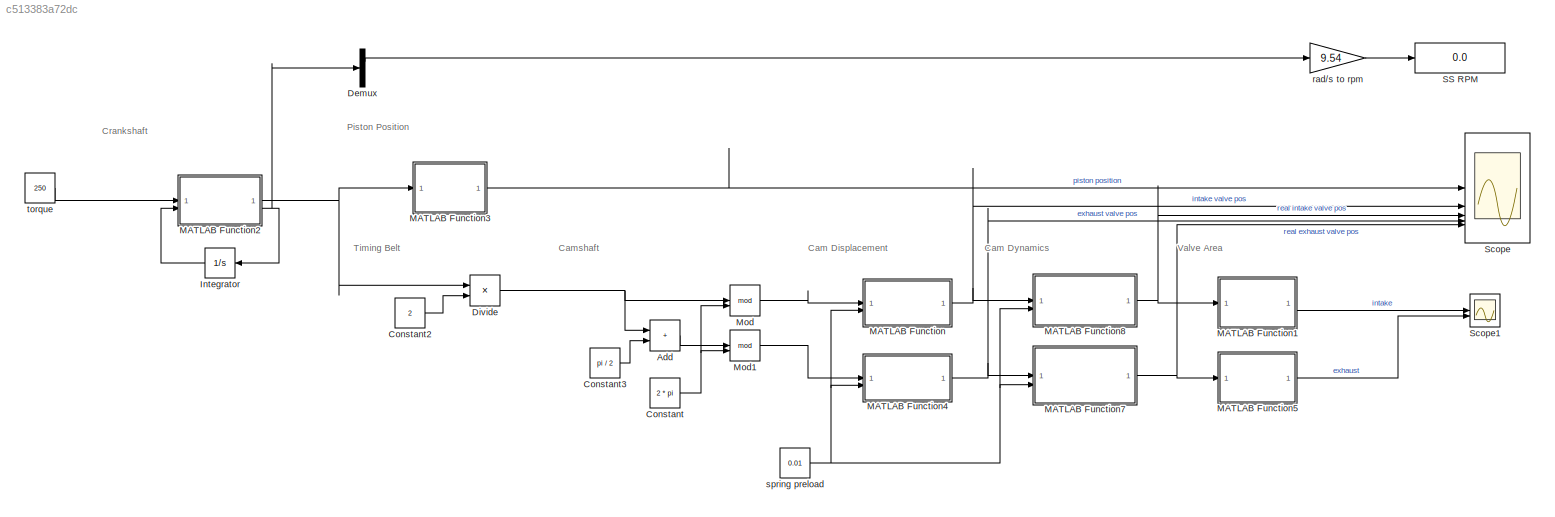
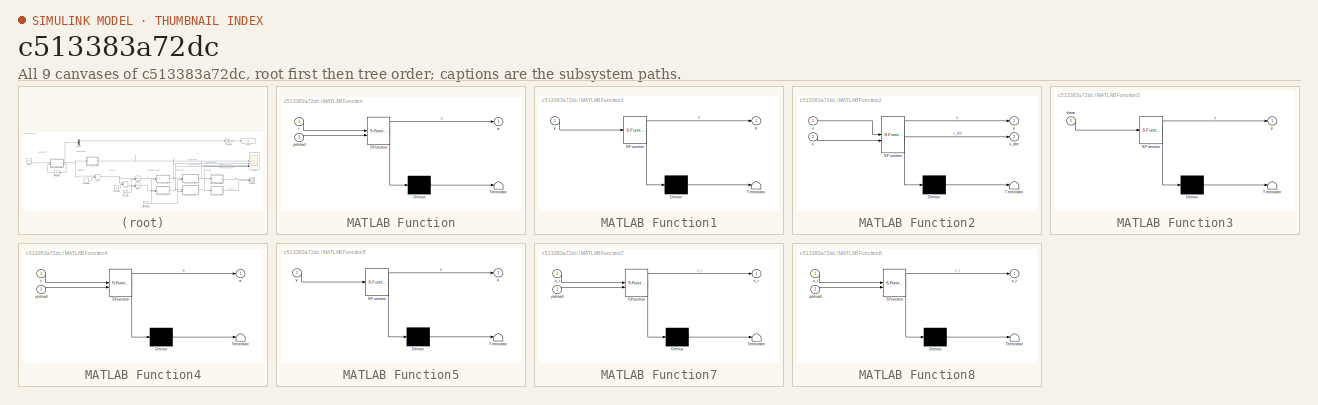
[diagram: thumbnail index - all 9 canvases of the model, root first then tree order]
MODEL slx_c513383a72dc
KIND model
CONFIG AbsTol = auto
CONFIG EnableMultiTasking = off
CONFIG FixedStep = 0.0001
CONFIG MaxStep = auto
CONFIG MinStep = auto
CONFIG RelTol = 1e-3
CONFIG SampleTimeConstraint = Unconstrained
CONFIG SolverName = FixedStepAuto
CONFIG StartTime = 0.0
CONFIG StopTime = 3
BLOCK [Sum] Add
  IconShape = rectangular
BLOCK [Constant] Constant
  Value = 2 * pi
BLOCK [Constant] Constant2
  Value = 2
BLOCK [Constant] Constant3
  Value = pi / 2
BLOCK [Demux] Demux
  Outputs = 2
BLOCK [Product] Divide
  Inputs = */
BLOCK [Integrator] Integrator
  InitialCondition = [0;0]
  NameLocation = top
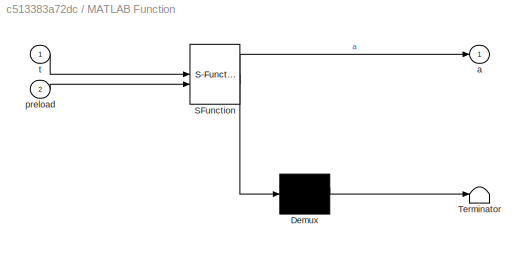
BLOCK [SubSystem] MATLAB Function
  ErrorFcn = Stateflow.Translate.translate
  LibrarySourceBlock = simulink/User-Defined\nFunctions/MATLAB Function
  PermitHierarchicalResolution = ExplicitOnly
  SFBlockType = MATLAB Function
  TreatAsAtomicUnit = on
BLOCK [Demux] MATLAB Function/ Demux 
  Outputs = 1
BLOCK [S-Function] MATLAB Function/ SFunction 
  EnableBusSupport = on
  FunctionName = sf_sfun
  PortCounts = [2 2]
  SFcnIsStateOwnerBlock = off
  SFunctionDeploymentMode = off
  Tag = Stateflow S-Function 2
BLOCK [Terminator] MATLAB Function/ Terminator 
BLOCK [Outport] MATLAB Function/a
BLOCK [Inport] MATLAB Function/preload
  Port = 2
BLOCK [Inport] MATLAB Function/t
BLOCK [SubSystem] MATLAB Function1
  ErrorFcn = Stateflow.Translate.translate
  LibrarySourceBlock = simulink/User-Defined\nFunctions/MATLAB Function
  PermitHierarchicalResolution = ExplicitOnly
  SFBlockType = MATLAB Function
  TreatAsAtomicUnit = on
BLOCK [Demux] MATLAB Function1/ Demux 
  Outputs = 1
BLOCK [S-Function] MATLAB Function1/ SFunction 
  EnableBusSupport = on
  FunctionName = sf_sfun
  PortCounts = [1 2]
  SFcnIsStateOwnerBlock = off
  SFunctionDeploymentMode = off
  Tag = Stateflow S-Function 1
BLOCK [Terminator] MATLAB Function1/ Terminator 
BLOCK [Outport] MATLAB Function1/a
BLOCK [Inport] MATLAB Function1/y
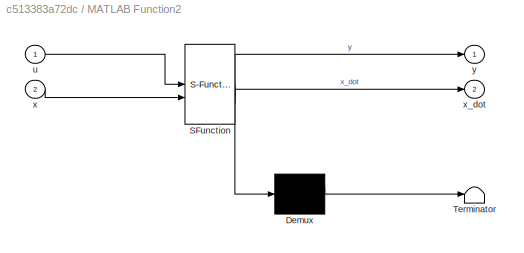
BLOCK [SubSystem] MATLAB Function2
  ErrorFcn = Stateflow.Translate.translate
  LibrarySourceBlock = simulink/User-Defined\nFunctions/MATLAB Function
  PermitHierarchicalResolution = ExplicitOnly
  SFBlockType = MATLAB Function
  TreatAsAtomicUnit = on
BLOCK [Demux] MATLAB Function2/ Demux 
  Outputs = 1
BLOCK [S-Function] MATLAB Function2/ SFunction 
  EnableBusSupport = on
  FunctionName = sf_sfun
  PortCounts = [2 3]
  SFcnIsStateOwnerBlock = off
  SFunctionDeploymentMode = off
  Tag = Stateflow S-Function 3
BLOCK [Terminator] MATLAB Function2/ Terminator 
BLOCK [Inport] MATLAB Function2/u
BLOCK [Inport] MATLAB Function2/x
  Port = 2
BLOCK [Outport] MATLAB Function2/x_dot
  Port = 2
BLOCK [Outport] MATLAB Function2/y
BLOCK [SubSystem] MATLAB Function3
  ErrorFcn = Stateflow.Translate.translate
  LibrarySourceBlock = simulink/User-Defined\nFunctions/MATLAB Function
  PermitHierarchicalResolution = ExplicitOnly
  SFBlockType = MATLAB Function
  TreatAsAtomicUnit = on
BLOCK [Demux] MATLAB Function3/ Demux 
  Outputs = 1
BLOCK [S-Function] MATLAB Function3/ SFunction 
  EnableBusSupport = on
  FunctionName = sf_sfun
  PortCounts = [1 2]
  SFcnIsStateOwnerBlock = off
  SFunctionDeploymentMode = off
  Tag = Stateflow S-Function 4
BLOCK [Terminator] MATLAB Function3/ Terminator 
BLOCK [Inport] MATLAB Function3/theta
BLOCK [Outport] MATLAB Function3/y
BLOCK [SubSystem] MATLAB Function4
  ErrorFcn = Stateflow.Translate.translate
  LibrarySourceBlock = simulink/User-Defined\nFunctions/MATLAB Function
  PermitHierarchicalResolution = ExplicitOnly
  SFBlockType = MATLAB Function
  TreatAsAtomicUnit = on
BLOCK [Demux] MATLAB Function4/ Demux 
  Outputs = 1
BLOCK [S-Function] MATLAB Function4/ SFunction 
  EnableBusSupport = on
  FunctionName = sf_sfun
  PortCounts = [2 2]
  SFcnIsStateOwnerBlock = off
  SFunctionDeploymentMode = off
  Tag = Stateflow S-Function 5
BLOCK [Terminator] MATLAB Function4/ Terminator 
BLOCK [Outport] MATLAB Function4/a
BLOCK [Inport] MATLAB Function4/preload
  Port = 2
BLOCK [Inport] MATLAB Function4/t
BLOCK [SubSystem] MATLAB Function5
  ErrorFcn = Stateflow.Translate.translate
  LibrarySourceBlock = simulink/User-Defined\nFunctions/MATLAB Function
  PermitHierarchicalResolution = ExplicitOnly
  SFBlockType = MATLAB Function
  TreatAsAtomicUnit = on
BLOCK [Demux] MATLAB Function5/ Demux 
  Outputs = 1
BLOCK [S-Function] MATLAB Function5/ SFunction 
  EnableBusSupport = on
  FunctionName = sf_sfun
  PortCounts = [1 2]
  SFcnIsStateOwnerBlock = off
  SFunctionDeploymentMode = off
  Tag = Stateflow S-Function 6
BLOCK [Terminator] MATLAB Function5/ Terminator 
BLOCK [Outport] MATLAB Function5/a
BLOCK [Inport] MATLAB Function5/y
BLOCK [SubSystem] MATLAB Function7
  ErrorFcn = Stateflow.Translate.translate
  LibrarySourceBlock = simulink/User-Defined\nFunctions/MATLAB Function
  PermitHierarchicalResolution = ExplicitOnly
  SFBlockType = MATLAB Function
  TreatAsAtomicUnit = on
BLOCK [Demux] MATLAB Function7/ Demux 
  Outputs = 1
BLOCK [S-Function] MATLAB Function7/ SFunction 
  EnableBusSupport = on
  FunctionName = sf_sfun
  PortCounts = [2 2]
  SFcnIsStateOwnerBlock = off
  SFunctionDeploymentMode = off
  Tag = Stateflow S-Function 8
BLOCK [Terminator] MATLAB Function7/ Terminator 
BLOCK [Inport] MATLAB Function7/preload
  Port = 2
BLOCK [Inport] MATLAB Function7/x_i
BLOCK [Outport] MATLAB Function7/x_r
BLOCK [SubSystem] MATLAB Function8
  ErrorFcn = Stateflow.Translate.translate
  LibrarySourceBlock = simulink/User-Defined\nFunctions/MATLAB Function
  PermitHierarchicalResolution = ExplicitOnly
  SFBlockType = MATLAB Function
  TreatAsAtomicUnit = on
BLOCK [Demux] MATLAB Function8/ Demux 
  Outputs = 1
BLOCK [S-Function] MATLAB Function8/ SFunction 
  EnableBusSupport = on
  FunctionName = sf_sfun
  PortCounts = [2 2]
  SFcnIsStateOwnerBlock = off
  SFunctionDeploymentMode = off
  Tag = Stateflow S-Function 9
BLOCK [Terminator] MATLAB Function8/ Terminator 
BLOCK [Inport] MATLAB Function8/preload
  Port = 2
BLOCK [Inport] MATLAB Function8/x_i
BLOCK [Outport] MATLAB Function8/x_r
BLOCK [Math] Mod
  Operator = mod
BLOCK [Math] Mod1
  Operator = mod
BLOCK [Display] SS RPM
  Decimation = 1
BLOCK [Scope] Scope
  Floating = off
  NumInputPorts = 5
  ScopeSpecificationString = Simulink.scopes.TimeScopeBlockCfg('CurrentConfiguration', extmgr.ConfigurationSet(extmgr.Configuration('Core','General UI',true),extmgr.Configuration('Core','Source UI',true),extmgr.Configuration('Sources','WiredSimulink',true,'DataLoggingVariableName','ScopeData1'),extmgr.Configuration('Visuals','Time Domain',true,'PlotType','Line','SerializedDisplays',{struct('MinYLimReal','0.00897','MaxYLimReal...<+1839ch>
BLOCK [Scope] Scope1
  Floating = off
  NumInputPorts = 2
  ScopeSpecificationString = Simulink.scopes.TimeScopeBlockCfg('CurrentConfiguration', extmgr.ConfigurationSet(extmgr.Configuration('Core','General UI',true),extmgr.Configuration('Core','Source UI',true),extmgr.Configuration('Sources','WiredSimulink',true,'DataLoggingVariableName','ScopeData1'),extmgr.Configuration('Visuals','Time Domain',true,'SerializedDisplays',{struct('MinYLimReal','0.0011','MaxYLimReal','0.00269','YLabel...<+1486ch>
BLOCK [Gain] rad//s to rpm
  Gain = 9.54
BLOCK [Constant] spring preload
  Value = 0.01
BLOCK [Constant] torque
  Value = 250
ANNOTATION (root): Cam Displacement
ANNOTATION (root): Cam Dynamics
ANNOTATION (root): Camshaft
ANNOTATION (root): Crankshaft
ANNOTATION (root): Piston Position
ANNOTATION (root): Timing Belt
ANNOTATION (root): Valve Area
LINE Add:1 -> Mod1:1
LINE Constant2:1 -> Divide:2
LINE Constant3:1 -> Add:2
NET Constant:1 -> Mod1:2, Mod:2
LINE Demux:1 -> rad//s to rpm:1
NET Divide:1 -> Add:1, Mod:1
LINE Integrator:1 -> MATLAB Function2:2
LINE MATLAB Function1:1 -> Scope1:1
NET MATLAB Function2:1 -> Divide:1, MATLAB Function3:1
NET MATLAB Function2:2 -> Demux:1, Integrator:1
LINE MATLAB Function3:1 -> Scope:1
NET MATLAB Function4:1 -> MATLAB Function7:1, Scope:4
LINE MATLAB Function5:1 -> Scope1:2
NET MATLAB Function7:1 -> MATLAB Function5:1, Scope:5
NET MATLAB Function8:1 -> MATLAB Function1:1, Scope:3
NET MATLAB Function:1 -> MATLAB Function8:1, Scope:2
LINE Mod1:1 -> MATLAB Function4:1
LINE Mod:1 -> MATLAB Function:1
LINE rad//s to rpm:1 -> SS RPM:1
NET spring preload:1 -> MATLAB Function4:2, MATLAB Function7:2, MATLAB Function8:2, MATLAB Function:2
LINE torque:1 -> MATLAB Function2:1
note: NET lines group one-source signal fan-out (src -> all destinations, sorted); 1:1 wires keep LINE
CHART MATLAB Function1 states=1 transitions=1
  STATE_LABEL 'eML_blk_kernel()'
  STATE_LABEL 'SCRIPT:\nfunction a = fcn(y)\n\npi = 3.141592;\nr = 0.02;\n\na = 2 * pi * r * y;\n\nend'
CHART MATLAB Function states=1 transitions=1
  STATE_LABEL 'eML_blk_kernel()'
  STATE_LABEL 'SCRIPT:\nfunction a = fcn(t, preload)\n\ne = 2.71828;\npi = 3.141592;\nr = 0.02;\n\nmaxInputArea = pi * r^2;\n\nmaxValveDisplacement = maxInputArea / (2 * pi * r);\n\na = (e^(-((2 * t) - (pi / 2))^4) * maxValveDisplacement) + preload;\n\nend'
CHART MATLAB Function2 states=1 transitions=1
  STATE_LABEL 'eML_blk_kernel()'
  STATE_LABEL 'SCRIPT:\nfunction [y, x_dot] = fcn(u, x)\n\nI = 0.19215;\nc = 0.32236;\nk = 0;\n\nA = [  0     1  ;\n     -k/I  -c/I];\nB = [ 0  ;\n     1/I];\nC = [1 0];\nD = 0;\n\nx_dot = A * x + B * u;\ny = C * x + D * u;\n\n'
CHART MATLAB Function3 states=1 transitions=1
  STATE_LABEL 'eML_blk_kernel()'
  STATE_LABEL 'SCRIPT:\nfunction y  = fcn(theta)\n\nl1 = 0.05;\nl2 = 0.1;\ne = 0;\nh = 0;\n\ny = sqrt(l2^2 - (l1 * sin(theta) + e)^2) + l1 * cos(theta) + h;\n'
CHART MATLAB Function4 states=1 transitions=1
  STATE_LABEL 'eML_blk_kernel()'
  STATE_LABEL 'SCRIPT:\nfunction a = fcn(t, preload)\n\ne = 2.71828;\npi = 3.141592;\nr = 0.02;\n\nmaxInputArea = pi * r^2;\n\nmaxValveDisplacement = maxInputArea / (2 * pi * r);\n\na = e^(-((2 * t) - (pi / 2))^4) * maxValveDisplacement + preload;\n\nend'
CHART MATLAB Function5 states=1 transitions=1
  STATE_LABEL 'eML_blk_kernel()'
  STATE_LABEL 'SCRIPT:\nfunction a = fcn(y)\n\npi = 3.141592;\nr = 0.02;\n\na = 2 * pi * r * y;\n\n\nend'
CHART MATLAB Function7 states=1 transitions=1
  STATE_LABEL 'eML_blk_kernel()'
  STATE_LABEL 'SCRIPT:\nfunction x_r = fcn(x_i, preload)\n\ndt = 0.0001;\n\npersistent x\npersistent x_dot\npersistent x_i_l;\n\nif isempty(x_i_l)\n    x_i_l = preload;\nend\n\nx_i_d = (x_i - x_i_l) / dt;\n\nif isempty(x_dot)\n    x_dot = [0 ; 0];\nend\nif isempty(x)\n    x = [preload ; 0];\nelse\n    x_temp = x + x_dot * dt;\n    if x_temp(1) < x_i\n        x(1) = x_i;\n        x(2) = x_i_d - (x(2) - x_i_d) * 0.5;\n    else\n        x =...<+146ch>'
CHART MATLAB Function8 states=1 transitions=1
  STATE_LABEL 'eML_blk_kernel()'
  STATE_LABEL 'SCRIPT:\nfunction x_r = fcn(x_i, preload)\n\ndt = 0.0001;\n\npersistent x\npersistent x_dot\npersistent x_i_l;\n\nif isempty(x_i_l)\n    x_i_l = preload;\nend\n\nx_i_d = (x_i - x_i_l) / dt;\n\nif isempty(x_dot)\n    x_dot = [0 ; 0];\nend\nif isempty(x)\n    x = [preload ; 0];\nelse\n    x_temp = x + x_dot * dt;\n    if x_temp(1) < x_i\n        x(1) = x_i;\n        x(2) = x_i_d - (x(2) - x_i_d) * 0.5;\n    else\n        x =...<+146ch>'
CHART  states=0 transitions=0
CHART  states=0 transitions=0
CHART  states=0 transitions=0
CHART  states=0 transitions=0
CHART  states=0 transitions=0
CHART  states=0 transitions=0
CHART  states=0 transitions=0
CHART  states=0 transitions=0
